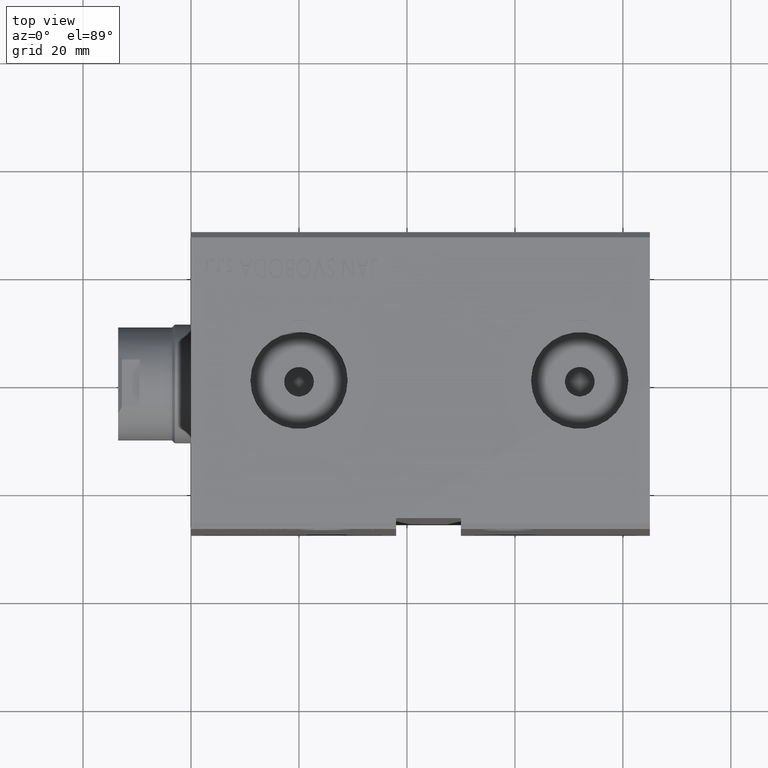
[diagram: clean part render]
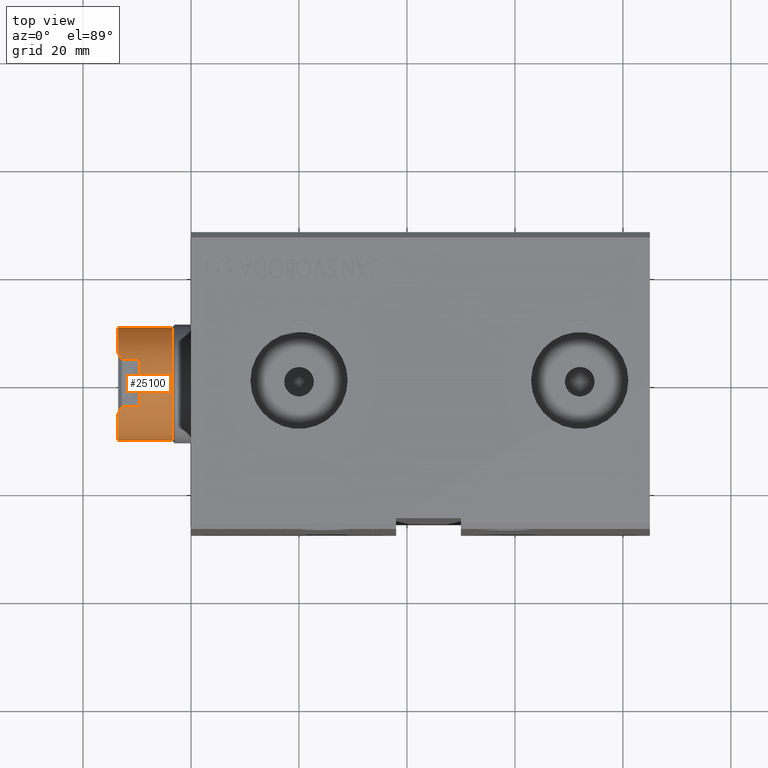
[diagram: same view with one face highlighted and labeled with its STEP entity id]
A machine part, top view. The second image highlights one B-rep face of the part: STEP entity #25100.
In plain terms, the highlighted cylindrical surface (partial cylindrical patch) has radius 10.46 mm, axis along (-1, -0, -0).
Its self-contained STEP definition (entity closure, byte-faithful):
#1439 = CIRCLE ( 'NONE', #6651, 10.45999999999999908 ) ;
#1707 = CARTESIAN_POINT ( 'NONE',  ( 9.500000000000000000, -4.377396486497432626, 64.50000000000000000 ) ) ;
#2004 = CARTESIAN_POINT ( 'NONE',  ( 0.000000000000000000, 10.45999999999998842, 58.50000000000000000 ) ) ;
#2027 = DIRECTION ( 'NONE',  ( 0.000000000000000000, -1.000000000000000000, 0.000000000000000000 ) ) ;
#2876 = ORIENTED_EDGE ( 'NONE', *, *, #24963, .T. ) ;
#3088 = VERTEX_POINT ( 'NONE', #5839 ) ;
#3581 = VERTEX_POINT ( 'NONE', #14734 ) ;
#3613 = DIRECTION ( 'NONE',  ( 0.000000000000000000, -1.000000000000000000, 0.000000000000000000 ) ) ;
#3780 = ORIENTED_EDGE ( 'NONE', *, *, #40264, .F. ) ;
#3786 = EDGE_CURVE ( 'NONE', #3581, #33845, #1439, .T. ) ;
#4378 = CARTESIAN_POINT ( 'NONE',  ( 8.789999999999997371, -5.669876541865807695, 68.50000000000000000 ) ) ;
#4486 = ORIENTED_EDGE ( 'NONE', *, *, #39300, .F. ) ;
#5639 = CARTESIAN_POINT ( 'NONE',  ( 0.000000000000000000, -1.149081997822838646E-14, 64.50000000000000000 ) ) ;
#5839 = CARTESIAN_POINT ( 'NONE',  ( 1.280980551908131330E-15, 10.45999999999998664, 68.50000000000000000 ) ) ;
#5925 = VERTEX_POINT ( 'NONE', #4378 ) ;
#6069 = EDGE_CURVE ( 'NONE', #33845, #36092, #11711, .T. ) ;
#6368 = EDGE_LOOP ( 'NONE', ( #40294, #16682, #3780, #18607, #18421, #7686, #24554, #2876, #4486, #33128 ) ) ;
#6651 = AXIS2_PLACEMENT_3D ( 'NONE', #5639, #34067, #9725 ) ;
#6871 = DIRECTION ( 'NONE',  ( -0.000000000000000000, -1.781522477244710957E-16, 1.000000000000000000 ) ) ;
#7686 = ORIENTED_EDGE ( 'NONE', *, *, #3786, .T. ) ;
#7942 = CARTESIAN_POINT ( 'NONE',  ( 1.314046015485110459E-15, -10.46000000000000973, 58.50000000000000000 ) ) ;
#8225 = EDGE_CURVE ( 'NONE', #34252, #3088, #11944, .T. ) ;
#9517 = AXIS2_PLACEMENT_3D ( 'NONE', #17355, #31753, #2027 ) ;
#9725 = DIRECTION ( 'NONE',  ( -1.000000000000000000, 0.000000000000000000, 0.000000000000000000 ) ) ;
#10553 = DIRECTION ( 'NONE',  ( -0.000000000000000000, -1.781522477244711203E-16, 1.000000000000000000 ) ) ;
#11081 = DIRECTION ( 'NONE',  ( 0.000000000000000000, -1.000000000000000000, 0.000000000000000000 ) ) ;
#11281 = DIRECTION ( 'NONE',  ( 0.000000000000000000, -1.000000000000000000, 0.000000000000000000 ) ) ;
#11661 = DIRECTION ( 'NONE',  ( -0.000000000000000000, -1.781522477244710957E-16, 1.000000000000000000 ) ) ;
#11711 = LINE ( 'NONE', #39737, #28915 ) ;
#11740 = DIRECTION ( 'NONE',  ( -0.000000000000000000, -1.781522477244711203E-16, 1.000000000000000000 ) ) ;
#11944 = LINE ( 'NONE', #30560, #34170 ) ;
#13671 = CARTESIAN_POINT ( 'NONE',  ( 9.500000000000000000, 4.377396486497409533, 67.79000000000000625 ) ) ;
#14734 = CARTESIAN_POINT ( 'NONE',  ( 9.500000000000000000, 4.377396486497410422, 64.50000000000000000 ) ) ;
#14769 =( BOUNDED_CURVE ( )  B_SPLINE_CURVE ( 3, ( #20201, #17120, #29618, #20799 ),
 .UNSPECIFIED., .F., .F. ) 
 B_SPLINE_CURVE_WITH_KNOTS ( ( 4, 4 ),
 ( 3.573373807102883770, 3.714471135698167004 ),
 .UNSPECIFIED. ) 
 CURVE ( )  GEOMETRIC_REPRESENTATION_ITEM ( )  RATIONAL_B_SPLINE_CURVE ( ( 1.000000000000000000, 0.9983416499762383101, 0.9983416499762383101, 1.000000000000000000 ) ) 
 REPRESENTATION_ITEM ( '' )  );
#15188 = DIRECTION ( 'NONE',  ( -0.000000000000000000, -1.781522477244711203E-16, 1.000000000000000000 ) ) ;
#15952 = CARTESIAN_POINT ( 'NONE',  ( 9.500000000000000000, 4.377396486497409533, 68.50000000000000000 ) ) ;
#16682 = ORIENTED_EDGE ( 'NONE', *, *, #8225, .T. ) ;
#17120 = CARTESIAN_POINT ( 'NONE',  ( 9.293949384395537194, -4.824575729748640462, 67.99605061560447439 ) ) ;
#17355 = CARTESIAN_POINT ( 'NONE',  ( 0.000000000000000000, -1.042190649188155989E-14, 58.50000000000000000 ) ) ;
#17586 = CARTESIAN_POINT ( 'NONE',  ( 0.000000000000000000, -1.220342896912627084E-14, 68.50000000000000000 ) ) ;
#17680 = CIRCLE ( 'NONE', #34697, 10.45999999999999908 ) ;
#18421 = ORIENTED_EDGE ( 'NONE', *, *, #36274, .T. ) ;
#18607 = ORIENTED_EDGE ( 'NONE', *, *, #39577, .T. ) ;
#20201 = CARTESIAN_POINT ( 'NONE',  ( 9.500000000000000000, -4.377396486497433514, 67.79000000000000625 ) ) ;
#20439 = EDGE_CURVE ( 'NONE', #34303, #34252, #25202, .T. ) ;
#20526 =( BOUNDED_CURVE ( )  B_SPLINE_CURVE ( 3, ( #38045, #24765, #34370, #37635 ),
 .UNSPECIFIED., .F., .F. ) 
 B_SPLINE_CURVE_WITH_KNOTS ( ( 4, 4 ),
 ( 2.568714171481419228, 2.709811500076702462 ),
 .UNSPECIFIED. ) 
 CURVE ( )  GEOMETRIC_REPRESENTATION_ITEM ( )  RATIONAL_B_SPLINE_CURVE ( ( 1.000000000000000000, 0.9983416499762383101, 0.9983416499762383101, 1.000000000000000000 ) ) 
 REPRESENTATION_ITEM ( '' )  );
#20799 = CARTESIAN_POINT ( 'NONE',  ( 8.789999999999997371, -5.669876541865807695, 68.50000000000000000 ) ) ;
#21830 = CARTESIAN_POINT ( 'NONE',  ( 8.789999999999997371, 5.669876541865782826, 68.50000000000000000 ) ) ;
#22307 = DIRECTION ( 'NONE',  ( 0.000000000000000000, 1.781522477244711203E-16, -1.000000000000000000 ) ) ;
#23720 = CARTESIAN_POINT ( 'NONE',  ( 9.500000000000000000, -4.377396486497433514, 67.79000000000000625 ) ) ;
#24554 = ORIENTED_EDGE ( 'NONE', *, *, #6069, .T. ) ;
#24765 = CARTESIAN_POINT ( 'NONE',  ( 9.056889589612556080, 5.256118063110192473, 68.23311041038743952 ) ) ;
#24963 = EDGE_CURVE ( 'NONE', #36092, #5925, #14769, .T. ) ;
#25100 = ADVANCED_FACE ( 'NONE', ( #31824 ), #31222, .T. ) ;
#25202 = CIRCLE ( 'NONE', #9517, 10.45999999999999908 ) ;
#25551 = AXIS2_PLACEMENT_3D ( 'NONE', #17586, #11661, #11081 ) ;
#25831 = VERTEX_POINT ( 'NONE', #21830 ) ;
#25914 = LINE ( 'NONE', #34894, #39052 ) ;
#27237 = AXIS2_PLACEMENT_3D ( 'NONE', #34892, #6871, #3613 ) ;
#28915 = VECTOR ( 'NONE', #15188, 1000.000000000000000 ) ;
#29528 = VERTEX_POINT ( 'NONE', #13671 ) ;
#29618 = CARTESIAN_POINT ( 'NONE',  ( 9.056889589612556080, -5.256118063110215566, 68.23311041038743952 ) ) ;
#29703 = DIRECTION ( 'NONE',  ( -0.000000000000000000, -1.781522477244710957E-16, 1.000000000000000000 ) ) ;
#29904 = CARTESIAN_POINT ( 'NONE',  ( 0.000000000000000000, -1.220342896912627084E-14, 68.50000000000000000 ) ) ;
#30088 = CIRCLE ( 'NONE', #25551, 10.45999999999999908 ) ;
#30560 = CARTESIAN_POINT ( 'NONE',  ( 1.280980551908131330E-15, 10.45999999999998664, 68.50000000000000000 ) ) ;
#31222 = CYLINDRICAL_SURFACE ( 'NONE', #27237, 10.45999999999999908 ) ;
#31753 = DIRECTION ( 'NONE',  ( -0.000000000000000000, -1.781522477244710957E-16, 1.000000000000000000 ) ) ;
#31824 = FACE_OUTER_BOUND ( 'NONE', #6368, .T. ) ;
#32130 = CARTESIAN_POINT ( 'NONE',  ( 0.000000000000000000, -10.46000000000001151, 68.50000000000000000 ) ) ;
#32249 = EDGE_CURVE ( 'NONE', #34303, #32693, #25914, .T. ) ;
#32693 = VERTEX_POINT ( 'NONE', #32130 ) ;
#33128 = ORIENTED_EDGE ( 'NONE', *, *, #32249, .F. ) ;
#33845 = VERTEX_POINT ( 'NONE', #1707 ) ;
#34067 = DIRECTION ( 'NONE',  ( -0.000000000000000000, -0.000000000000000000, -1.000000000000000000 ) ) ;
#34170 = VECTOR ( 'NONE', #11740, 1000.000000000000000 ) ;
#34252 = VERTEX_POINT ( 'NONE', #2004 ) ;
#34303 = VERTEX_POINT ( 'NONE', #7942 ) ;
#34370 = CARTESIAN_POINT ( 'NONE',  ( 9.293949384395535418, 4.824575729748616482, 67.99605061560447439 ) ) ;
#34697 = AXIS2_PLACEMENT_3D ( 'NONE', #29904, #29703, #11281 ) ;
#34892 = CARTESIAN_POINT ( 'NONE',  ( 0.000000000000000000, -1.220342896912627084E-14, 68.50000000000000000 ) ) ;
#34894 = CARTESIAN_POINT ( 'NONE',  ( 0.000000000000000000, -10.46000000000001151, 68.50000000000000000 ) ) ;
#36092 = VERTEX_POINT ( 'NONE', #23720 ) ;
#36274 = EDGE_CURVE ( 'NONE', #29528, #3581, #40299, .T. ) ;
#36529 = VECTOR ( 'NONE', #22307, 1000.000000000000000 ) ;
#37635 = CARTESIAN_POINT ( 'NONE',  ( 9.500000000000000000, 4.377396486497409533, 67.79000000000000625 ) ) ;
#38045 = CARTESIAN_POINT ( 'NONE',  ( 8.789999999999997371, 5.669876541865782826, 68.50000000000000000 ) ) ;
#39052 = VECTOR ( 'NONE', #10553, 1000.000000000000000 ) ;
#39300 = EDGE_CURVE ( 'NONE', #32693, #5925, #30088, .T. ) ;
#39577 = EDGE_CURVE ( 'NONE', #25831, #29528, #20526, .T. ) ;
#39737 = CARTESIAN_POINT ( 'NONE',  ( 9.500000000000000000, -4.377396486497433514, 68.50000000000000000 ) ) ;
#40264 = EDGE_CURVE ( 'NONE', #25831, #3088, #17680, .T. ) ;
#40294 = ORIENTED_EDGE ( 'NONE', *, *, #20439, .T. ) ;
#40299 = LINE ( 'NONE', #15952, #36529 ) ;